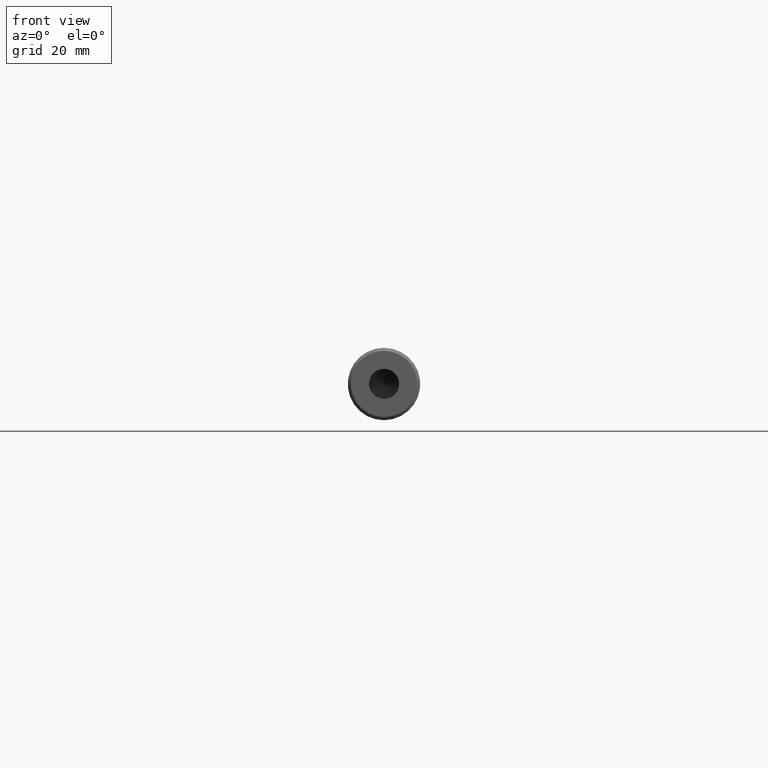
[diagram: clean part render]
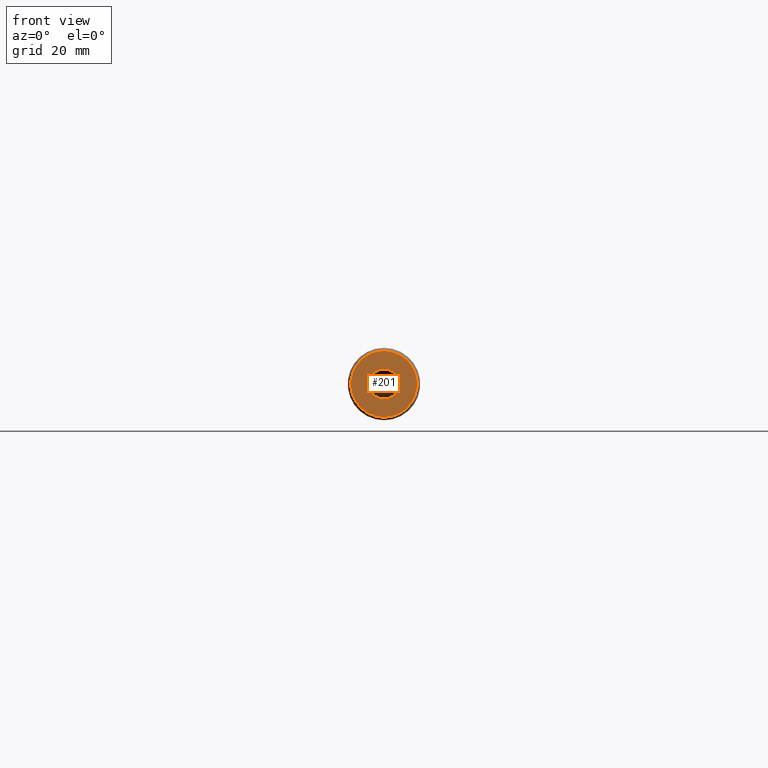
[diagram: same view with one face highlighted and labeled with its STEP entity id]
A machine part, front view. The second image highlights one B-rep face of the part: STEP entity #201.
In plain terms, the highlighted planar face has unit normal (0, 1, 0).
Its self-contained STEP definition (entity closure, byte-faithful):
#1 = ORIENTED_EDGE ( 'NONE', *, *, #247, .F. ) ;
#10 = CIRCLE ( 'NONE', #121, 2.499999999999998224 ) ;
#22 = DIRECTION ( 'NONE',  ( 0.000000000000000000, 0.000000000000000000, -1.000000000000000000 ) ) ;
#40 = FACE_BOUND ( 'NONE', #75, .T. ) ;
#57 = DIRECTION ( 'NONE',  ( 0.000000000000000000, 1.000000000000000000, 0.000000000000000000 ) ) ;
#74 = CIRCLE ( 'NONE', #242, 5.500000000040472514 ) ;
#75 = EDGE_LOOP ( 'NONE', ( #1 ) ) ;
#82 = DIRECTION ( 'NONE',  ( -0.000000000000000000, -1.000000000000000000, -0.000000000000000000 ) ) ;
#84 = CARTESIAN_POINT ( 'NONE',  ( 0.000000000000000000, 0.000000000000000000, 5.500000000040472514 ) ) ;
#110 = CARTESIAN_POINT ( 'NONE',  ( 0.000000000000000000, 1.040949779275260987E-16, 0.000000000000000000 ) ) ;
#112 = PLANE ( 'NONE',  #208 ) ;
#121 = AXIS2_PLACEMENT_3D ( 'NONE', #110, #82, #22 ) ;
#133 = VERTEX_POINT ( 'NONE', #84 ) ;
#141 = FACE_OUTER_BOUND ( 'NONE', #264, .T. ) ;
#145 = CARTESIAN_POINT ( 'NONE',  ( 0.000000000000000000, 0.000000000000000000, 0.000000000000000000 ) ) ;
#201 = ADVANCED_FACE ( 'NONE', ( #40, #141 ), #112, .F. ) ;
#208 = AXIS2_PLACEMENT_3D ( 'NONE', #145, #236, #234 ) ;
#215 = CARTESIAN_POINT ( 'NONE',  ( 0.000000000000000000, 0.000000000000000000, 0.000000000000000000 ) ) ;
#219 = ORIENTED_EDGE ( 'NONE', *, *, #300, .F. ) ;
#234 = DIRECTION ( 'NONE',  ( 0.000000000000000000, -0.000000000000000000, 1.000000000000000000 ) ) ;
#236 = DIRECTION ( 'NONE',  ( 0.000000000000000000, 1.000000000000000000, 0.000000000000000000 ) ) ;
#242 = AXIS2_PLACEMENT_3D ( 'NONE', #215, #57, #255 ) ;
#247 = EDGE_CURVE ( 'NONE', #294, #294, #10, .T. ) ;
#255 = DIRECTION ( 'NONE',  ( 0.000000000000000000, 0.000000000000000000, 1.000000000000000000 ) ) ;
#264 = EDGE_LOOP ( 'NONE', ( #219 ) ) ;
#271 = CARTESIAN_POINT ( 'NONE',  ( 0.000000000000000000, 1.040949779275260987E-16, -2.499999999999998224 ) ) ;
#294 = VERTEX_POINT ( 'NONE', #271 ) ;
#300 = EDGE_CURVE ( 'NONE', #133, #133, #74, .T. ) ;